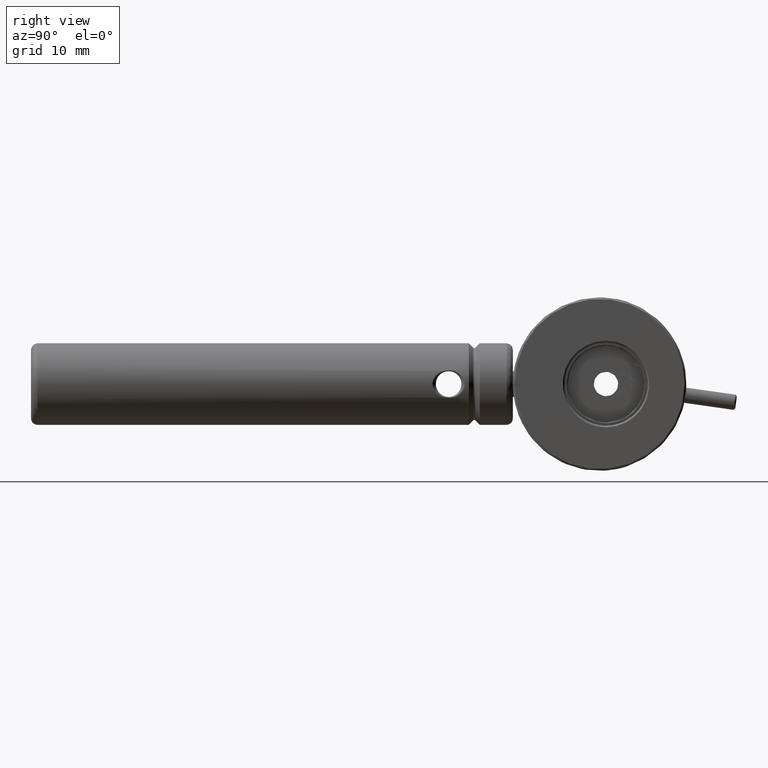
[diagram: clean part render]
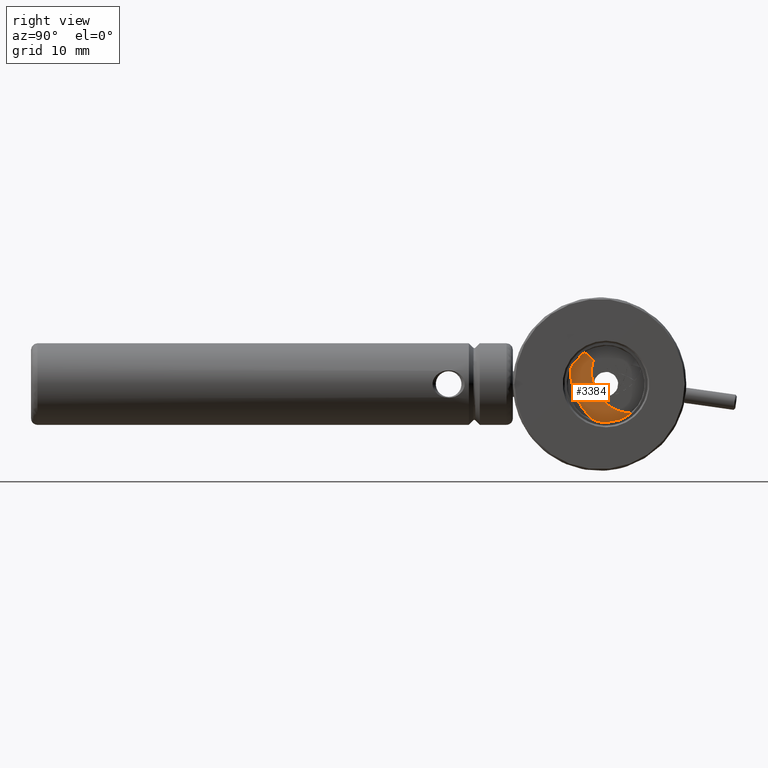
[diagram: same view with one face highlighted and labeled with its STEP entity id]
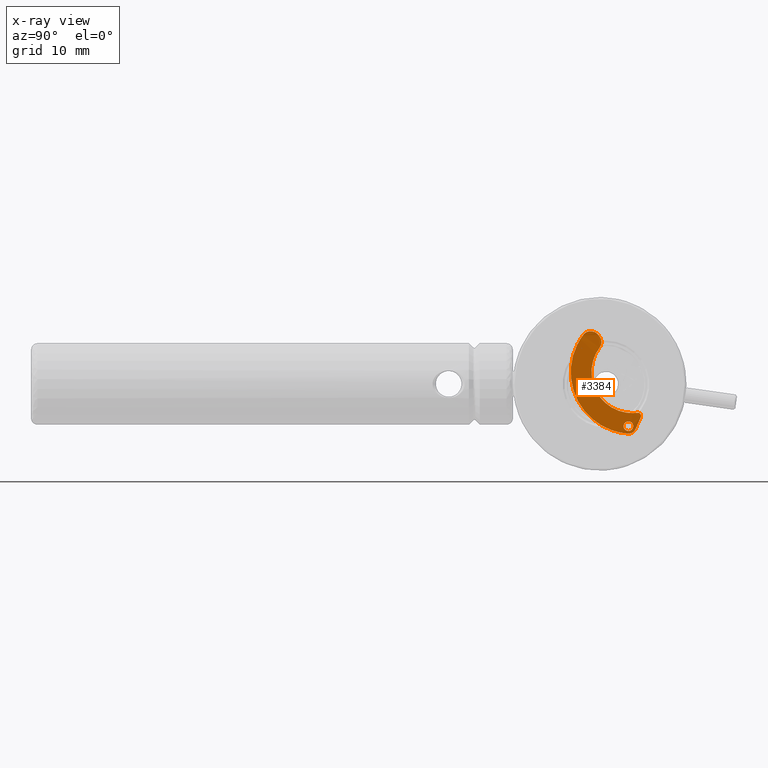
[diagram: x-ray of the same camera — body ghosted, the highlighted face saturated]
A machine part, right view. The second image highlights one B-rep face of the part: STEP entity #3384.
The next image is the same camera in x-ray: the body ghosted, the highlighted face saturated — about 0% of this face is hidden behind the body in this view.
In plain terms, the highlighted planar face has unit normal (1, 0, 0).
Its self-contained STEP definition (entity closure, byte-faithful):
#34 = CARTESIAN_POINT ( 'NONE',  ( 4.284389209459747327, 9.129644577415973572, -36.47709629962619715 ) ) ;
#56 = CARTESIAN_POINT ( 'NONE',  ( 4.284389209459749104, -0.5466496088072225756, -27.70730121021417958 ) ) ;
#67 = CARTESIAN_POINT ( 'NONE',  ( 4.284389209459748216, 2.269230515345574073, -21.95988392001439138 ) ) ;
#89 = CARTESIAN_POINT ( 'NONE',  ( 4.284389209459747327, 7.895870190242262332, -37.25816551434601109 ) ) ;
#104 = CARTESIAN_POINT ( 'NONE',  ( 4.284389209459747327, 6.681055616301959432, -37.65058599467197809 ) ) ;
#142 = CARTESIAN_POINT ( 'NONE',  ( 4.209389209459748038, 9.818608087542807894, -34.63553233431292000 ) ) ;
#150 = CARTESIAN_POINT ( 'NONE',  ( 4.284389209459747327, 8.593572894653801697, -37.45162155665323667 ) ) ;
#198 = CARTESIAN_POINT ( 'NONE',  ( 4.284389209459748216, 7.675355839000216562, -36.82513873861672238 ) ) ;
#217 = CARTESIAN_POINT ( 'NONE',  ( 4.284389209459747327, 8.792590758130295114, -37.37635474325567486 ) ) ;
#235 = CARTESIAN_POINT ( 'NONE',  ( 4.284389209459747327, -0.04289346514395403487, -31.51567432862530183 ) ) ;
#280 = CARTESIAN_POINT ( 'NONE',  ( 4.284389209459749104, 7.109269925686592551, -34.42393874764897532 ) ) ;
#336 = CARTESIAN_POINT ( 'NONE',  ( 4.284389209459748216, 4.261394358336889177, -32.52219250605705980 ) ) ;
#419 = B_SPLINE_CURVE_WITH_KNOTS ( 'NONE', 3,
 ( #10456, #1395, #1567, #6885, #6998, #4258, #6041, #1449, #7963, #8792, #11345, #2402, #578, #5157, #9791, #10509 ),
 .UNSPECIFIED., .F., .F.,
 ( 4, 1, 2, 2, 2, 1, 2, 2, 4 ),
 ( 0.000000000000000000, 0.1249999999999942546, 0.1874999999999931999, 0.2499999999999921729, 0.4999999999999912292, 0.6249999999999922284, 0.6874999999999927836, 0.7499999999999932276, 1.000000000000000000 ),
 .UNSPECIFIED. ) ;
#526 = CARTESIAN_POINT ( 'NONE',  ( 4.284389209459747327, 7.725194967300753390, -37.00604499802125247 ) ) ;
#578 = CARTESIAN_POINT ( 'NONE',  ( 4.284389209459748216, 9.320803591190518489, -37.49365478639007421 ) ) ;
#614 = ORIENTED_EDGE ( 'NONE', *, *, #10128, .T. ) ;
#771 = FACE_OUTER_BOUND ( 'NONE', #1101, .T. ) ;
#799 = CARTESIAN_POINT ( 'NONE',  ( 4.284389209459746439, 4.144050589942625429, -24.08664458096452776 ) ) ;
#824 = CARTESIAN_POINT ( 'NONE',  ( 4.284389209459747327, 9.044617219196918967, -28.30769201270893376 ) ) ;
#857 = CARTESIAN_POINT ( 'NONE',  ( 4.284389209459746439, 4.114428831848004009, -23.06432787447801402 ) ) ;
#919 = CARTESIAN_POINT ( 'NONE',  ( 4.284389209459746439, 7.813062179544697727, -37.17269221484468034 ) ) ;
#976 = B_SPLINE_CURVE_WITH_KNOTS ( 'NONE', 3,
 ( #6129, #10533, #7029, #5056 ),
 .UNSPECIFIED., .F., .F.,
 ( 4, 4 ),
 ( 0.000000000000000000, 1.000000000000000000 ),
 .UNSPECIFIED. ) ;
#981 = CARTESIAN_POINT ( 'NONE',  ( 4.284389209459746439, 8.477152548490060724, -37.46765488334390426 ) ) ;
#1001 = CARTESIAN_POINT ( 'NONE',  ( 4.284389209459746439, 0.7805301070696959442, -33.22521402805867297 ) ) ;
#1034 = CARTESIAN_POINT ( 'NONE',  ( 4.284389209459747327, 4.105460261231374197, -23.04225648653332215 ) ) ;
#1059 = CARTESIAN_POINT ( 'NONE',  ( 4.284389209459747327, 4.479526263845189149, -36.77301690639581722 ) ) ;
#1101 = EDGE_LOOP ( 'NONE', ( #1932, #10148, #614, #10682, #2634, #4455, #2488, #3511 ) ) ;
#1164 = CARTESIAN_POINT ( 'NONE',  ( 4.284389209459748216, 7.894951485639383648, -34.57821152315103319 ) ) ;
#1191 = CARTESIAN_POINT ( 'NONE',  ( 4.284389209459748216, 8.820745301351411882, -36.08285413206268544 ) ) ;
#1219 = CARTESIAN_POINT ( 'NONE',  ( 4.284389209459747327, 7.833733347725732266, -34.56667457941578903 ) ) ;
#1249 = CARTESIAN_POINT ( 'NONE',  ( 4.284389209459745551, 7.707015095403622063, -36.96205721398499833 ) ) ;
#1318 = CARTESIAN_POINT ( 'NONE',  ( 4.209389209459748038, 9.818608087542807894, -34.63553233431292000 ) ) ;
#1395 = CARTESIAN_POINT ( 'NONE',  ( 4.284389209459747327, 8.406211833803267197, -37.88663166856320430 ) ) ;
#1449 = CARTESIAN_POINT ( 'NONE',  ( 4.284389209459747327, 8.944054076698039424, -37.77860768321026796 ) ) ;
#1455 = EDGE_CURVE ( 'NONE', #4179, #8402, #3980, .T. ) ;
#1567 = CARTESIAN_POINT ( 'NONE',  ( 4.284389209459748216, 8.496093580908405940, -37.88646823572359068 ) ) ;
#1701 = ORIENTED_EDGE ( 'NONE', *, *, #4452, .T. ) ;
#1798 = CARTESIAN_POINT ( 'NONE',  ( 4.284389209459748216, 3.974491107121444600, -24.44226248167248627 ) ) ;
#1802 = CARTESIAN_POINT ( 'NONE',  ( 4.284389209459747327, 7.955208638848826119, -37.31020881624431240 ) ) ;
#1847 = CARTESIAN_POINT ( 'NONE',  ( 4.284389209459747327, 2.830245257939410841, -26.83763162453282902 ) ) ;
#1891 = CARTESIAN_POINT ( 'NONE',  ( 4.284389209459748216, -0.4434426589190031409, -29.77048906948382623 ) ) ;
#1910 = CARTESIAN_POINT ( 'NONE',  ( 4.284389209459748216, 3.601967573793711797, -24.94451700728298249 ) ) ;
#1932 = ORIENTED_EDGE ( 'NONE', *, *, #3465, .T. ) ;
#1947 = CARTESIAN_POINT ( 'NONE',  ( 4.284389209459747327, 1.573742583071081391, -34.33669330261774633 ) ) ;
#1970 = CARTESIAN_POINT ( 'NONE',  ( 4.284389209459748216, 9.993826970380311536, -34.63683890300990953 ) ) ;
#2003 = CARTESIAN_POINT ( 'NONE',  ( 4.284389209459747327, 2.199114430559903965, -35.09516112939671473 ) ) ;
#2048 = CARTESIAN_POINT ( 'NONE',  ( 4.209389209459748038, 9.818608087542807894, -34.63553233431292000 ) ) ;
#2063 = DIRECTION ( 'NONE',  ( 1.000000000000000000, 7.338923692361724524E-18, 1.195771523471305414E-17 ) ) ;
#2094 = CARTESIAN_POINT ( 'NONE',  ( 4.284389209459747327, 10.37320358880073989, -35.25061650055917539 ) ) ;
#2117 = CARTESIAN_POINT ( 'NONE',  ( 4.284389209459746439, 5.522874587060232265, -37.23964722325194288 ) ) ;
#2142 = CARTESIAN_POINT ( 'NONE',  ( 4.284389209459748216, 7.860620213286111380, -36.21742533542598608 ) ) ;
#2402 = CARTESIAN_POINT ( 'NONE',  ( 4.284389209459749104, 9.298075762403195554, -37.51801200846296780 ) ) ;
#2488 = ORIENTED_EDGE ( 'NONE', *, *, #4034, .T. ) ;
#2570 = CARTESIAN_POINT ( 'NONE',  ( 4.284389209459745551, 4.212961037046224710, -23.44977886954397661 ) ) ;
#2634 = ORIENTED_EDGE ( 'NONE', *, *, #11538, .T. ) ;
#2636 = CARTESIAN_POINT ( 'NONE',  ( 4.284389209459748216, 4.204458603704769537, -23.89428065667278744 ) ) ;
#2682 = CARTESIAN_POINT ( 'NONE',  ( 4.284389209459748216, 2.767223145578007859, -29.42273734854526168 ) ) ;
#2693 = CARTESIAN_POINT ( 'NONE',  ( 4.284389209459746439, 3.940210530964369351, -22.72841798731485596 ) ) ;
#2720 = CARTESIAN_POINT ( 'NONE',  ( 4.284389209459748216, -0.4822776892896086798, -29.49965193351094683 ) ) ;
#2746 = CARTESIAN_POINT ( 'NONE',  ( 4.284389209459747327, 10.36611715653027410, -34.98650101875943363 ) ) ;
#2800 = CARTESIAN_POINT ( 'NONE',  ( 4.284389209459747327, 3.123563641886640596, -25.94488484974772291 ) ) ;
#2807 = CARTESIAN_POINT ( 'NONE',  ( 4.284389209459747327, 10.38612605585042026, -35.16435717269200723 ) ) ;
#2818 = CARTESIAN_POINT ( 'NONE',  ( 4.284389209459747327, 7.761690972610700179, -37.09435026270317337 ) ) ;
#2832 = CARTESIAN_POINT ( 'NONE',  ( 4.284389209459747327, 9.111464705518830698, -36.43310851558992880 ) ) ;
#2845 = CARTESIAN_POINT ( 'NONE',  ( 4.284389209459748216, 0.2749558651827296862, -24.39952550312786528 ) ) ;
#2912 = CARTESIAN_POINT ( 'NONE',  ( 4.284389209459748216, 1.664559935120155432, -22.22692133145448068 ) ) ;
#2917 = CARTESIAN_POINT ( 'NONE',  ( 4.284389209459748216, 7.781607211667115997, -36.31716129186376918 ) ) ;
#2937 = CARTESIAN_POINT ( 'NONE',  ( 4.284389209459748216, 9.161303833819379960, -36.61401477499450152 ) ) ;
#3006 = CARTESIAN_POINT ( 'NONE',  ( 4.284389209459749104, 4.627352644675647220, -32.91083050108239405 ) ) ;
#3117 = CARTESIAN_POINT ( 'NONE',  ( 4.284389209459748216, 4.305774830354039295, -32.57241658524157657 ) ) ;
#3313 = B_SPLINE_CURVE_WITH_KNOTS ( 'NONE', 3,
 ( #3874, #1249, #8360, #198, #9360, #3821, #7459, #10186, #4651, #2917, #6559, #2142, #3993, #7571, #9412, #8294, #3756, #5670, #4884, #9300, #7399, #8527, #4780, #1191, #7514, #4830, #11255, #7685, #5052, #8696 ),
 .UNSPECIFIED., .F., .F.,
 ( 4, 1, 2, 2, 2, 1, 2, 2, 2, 1, 2, 2, 2, 1, 2, 2, 4 ),
 ( 0.000000000000000000, 0.06250000000001786071, 0.09375000000002224609, 0.1250000000000266454, 0.2500000000000189848, 0.3125000000000151545, 0.3437500000000167644, 0.3750000000000183187, 0.5000000000000184297, 0.5625000000000203171, 0.5937500000000202061, 0.6250000000000202061, 0.7500000000000158762, 0.8125000000000147660, 0.8437500000000118794, 0.8750000000000088818, 1.000000000000000000 ),
 .UNSPECIFIED. ) ;
#3384 = ADVANCED_FACE ( 'NONE', ( #771, #4401 ), #7135, .T. ) ;
#3465 = EDGE_CURVE ( 'NONE', #8112, #4240, #4639, .T. ) ;
#3511 = ORIENTED_EDGE ( 'NONE', *, *, #7448, .T. ) ;
#3578 = CARTESIAN_POINT ( 'NONE',  ( 4.284389209459747327, 2.750871316814002210, -29.32289873452907969 ) ) ;
#3596 = CARTESIAN_POINT ( 'NONE',  ( 4.284389209459747327, 8.226116728910943365, -37.45176091826943576 ) ) ;
#3668 = CARTESIAN_POINT ( 'NONE',  ( 4.209389209459748038, 8.345986795510389911, -37.88223719935354694 ) ) ;
#3695 = CARTESIAN_POINT ( 'NONE',  ( 4.284389209459746439, 3.085069746761240683, -26.04366968270779026 ) ) ;
#3737 = CARTESIAN_POINT ( 'NONE',  ( 4.284389209459747327, -0.5255643570241361751, -29.12020131652143107 ) ) ;
#3756 = CARTESIAN_POINT ( 'NONE',  ( 4.284389209459748216, 8.243086778165395145, -35.98753195695803697 ) ) ;
#3769 = CARTESIAN_POINT ( 'NONE',  ( 4.284389209459747327, 9.907956559180167488, -34.62460366076345508 ) ) ;
#3780 = CARTESIAN_POINT ( 'NONE',  ( 4.284389209459746439, 8.455342581761902565, -37.46908931579652346 ) ) ;
#3817 = CARTESIAN_POINT ( 'NONE',  ( 4.284389209459748216, 3.342000954406835866, -22.14520581535272825 ) ) ;
#3821 = CARTESIAN_POINT ( 'NONE',  ( 4.284389209459746439, 7.668817277418860101, -36.75658950215772336 ) ) ;
#3841 = CARTESIAN_POINT ( 'NONE',  ( 4.284389209459748216, 8.326356559883121733, -37.47110720286689656 ) ) ;
#3874 = CARTESIAN_POINT ( 'NONE',  ( 4.284389209459747327, 7.725194967300753390, -37.00604499802125247 ) ) ;
#3902 = CARTESIAN_POINT ( 'NONE',  ( 4.284389209459747327, 9.482279098169453135, -34.67667047201943831 ) ) ;
#3914 = CARTESIAN_POINT ( 'NONE',  ( 4.209389209459748038, 3.748912797359291726, -22.51932366129258156 ) ) ;
#3942 = CARTESIAN_POINT ( 'NONE',  ( 4.284389209459748216, 10.22716501720930182, -34.76156283252610990 ) ) ;
#3980 = B_SPLINE_CURVE_WITH_KNOTS ( 'NONE', 3,
 ( #5682, #2094, #2807, #2746, #6569, #3942, #7410, #1970, #3769, #142 ),
 .UNSPECIFIED., .F., .F.,
 ( 4, 2, 2, 2, 4 ),
 ( 0.000000000000000000, 0.2500000000000000000, 0.5000000000000000000, 0.7500000000000000000, 1.000000000000000000 ),
 .UNSPECIFIED. ) ;
#3993 = CARTESIAN_POINT ( 'NONE',  ( 4.284389209459748216, 7.879774047307580354, -36.19708517024501049 ) ) ;
#4034 = EDGE_CURVE ( 'NONE', #5221, #11254, #4885, .T. ) ;
#4179 = VERTEX_POINT ( 'NONE', #8827 ) ;
#4239 = B_SPLINE_CURVE_WITH_KNOTS ( 'NONE', 3,
 ( #6523, #34, #10985, #2937, #4670, #5450, #10210, #10150, #6579, #5393, #5574, #5515, #4736, #8256, #217, #8316, #150, #4491, #981, #3780, #3841, #3596, #6335, #7240, #1802, #10869, #89, #919, #2818, #4555 ),
 .UNSPECIFIED., .F., .F.,
 ( 4, 1, 2, 2, 2, 1, 2, 2, 2, 1, 2, 2, 2, 1, 2, 2, 4 ),
 ( 0.000000000000000000, 0.06249999999999444888, 0.09374999999999167333, 0.1249999999999888978, 0.2499999999999862332, 0.3124999999999887867, 0.3437499999999871214, 0.3749999999999854561, 0.4999999999999851230, 0.5624999999999839018, 0.5937499999999842348, 0.6249999999999845679, 0.7499999999999837907, 0.8124999999999850120, 0.8437499999999880096, 0.8749999999999910072, 1.000000000000000000 ),
 .UNSPECIFIED. ) ;
#4240 = VERTEX_POINT ( 'NONE', #10966 ) ;
#4258 = CARTESIAN_POINT ( 'NONE',  ( 4.284389209459747327, 8.672827919353569115, -37.86168592369518393 ) ) ;
#4375 = CARTESIAN_POINT ( 'NONE',  ( 4.284389209459747327, 3.152970831770081528, -30.74267206304206113 ) ) ;
#4401 = FACE_BOUND ( 'NONE', #6125, .T. ) ;
#4452 = EDGE_CURVE ( 'NONE', #7572, #4696, #3313, .T. ) ;
#4455 = ORIENTED_EDGE ( 'NONE', *, *, #9973, .T. ) ;
#4491 = CARTESIAN_POINT ( 'NONE',  ( 4.284389209459747327, 8.524017553423677285, -37.46254878718465164 ) ) ;
#4550 = CARTESIAN_POINT ( 'NONE',  ( 4.284389209459748216, 4.226680854708772195, -23.71826362369373697 ) ) ;
#4555 = CARTESIAN_POINT ( 'NONE',  ( 4.284389209459747327, 7.725194967300753390, -37.00604499802125247 ) ) ;
#4610 = CARTESIAN_POINT ( 'NONE',  ( 4.284389209459747327, 4.040444921478563600, -24.33592358499724995 ) ) ;
#4636 = CARTESIAN_POINT ( 'NONE',  ( 4.284389209459748216, 1.190015898778895576, -33.83464214253478985 ) ) ;
#4639 = B_SPLINE_CURVE_WITH_KNOTS ( 'NONE', 3,
 ( #9345, #10891, #7441, #5474, #2845, #9223, #4816, #10948, #7318, #11066, #56, #10052, #3737, #2720, #5539, #1891, #6358, #9104, #235, #8220, #1001, #4636, #10171, #8278, #1947, #7379, #2003, #6485, #4697, #1059, #9390, #2117, #8270, #5644, #9274, #104, #9337, #3668 ),
 .UNSPECIFIED., .F., .F.,
 ( 4, 1, 1, 1, 2, 2, 2, 1, 1, 1, 2, 2, 2, 1, 1, 1, 2, 2, 2, 1, 1, 1, 2, 2, 4 ),
 ( 0.000000000000000000, 0.06250000000000460743, 0.09375000000000691114, 0.1093750000000080630, 0.1171875000000083961, 0.1250000000000087430, 0.2500000000000119349, 0.3125000000000135447, 0.3437500000000140443, 0.3593750000000143219, 0.3671875000000147660, 0.3750000000000151545, 0.5000000000000162093, 0.5625000000000170974, 0.5937500000000180966, 0.6093750000000186517, 0.6171875000000184297, 0.6250000000000182077, 0.7500000000000131006, 0.8125000000000105471, 0.8437500000000091038, 0.8593750000000084377, 0.8671875000000081046, 0.8750000000000077716, 1.000000000000000000 ),
 .UNSPECIFIED. ) ;
#4651 = CARTESIAN_POINT ( 'NONE',  ( 4.284389209459749104, 7.745395913868687643, -36.38434821515650697 ) ) ;
#4670 = CARTESIAN_POINT ( 'NONE',  ( 4.284389209459748216, 9.166409214694802188, -36.66083405803618689 ) ) ;
#4696 = VERTEX_POINT ( 'NONE', #2832 ) ;
#4697 = CARTESIAN_POINT ( 'NONE',  ( 4.284389209459748216, 3.919108688051127665, -36.43677749502801078 ) ) ;
#4736 = CARTESIAN_POINT ( 'NONE',  ( 4.284389209459747327, 8.956885625512091664, -37.24206834336614236 ) ) ;
#4780 = CARTESIAN_POINT ( 'NONE',  ( 4.284389209459747327, 8.753558378058768241, -36.04664283426434679 ) ) ;
#4806 = CARTESIAN_POINT ( 'NONE',  ( 4.284389209459748216, 7.853360255901484344, -34.57043664298085162 ) ) ;
#4816 = CARTESIAN_POINT ( 'NONE',  ( 4.284389209459748216, 0.1717915593420392684, -24.64220640565695319 ) ) ;
#4830 = CARTESIAN_POINT ( 'NONE',  ( 4.284389209459747327, 8.920481257789296237, -36.16186713368179539 ) ) ;
#4855 = CARTESIAN_POINT ( 'NONE',  ( 4.284389209459748216, 5.085228424308542827, -33.32697001966762684 ) ) ;
#4884 = CARTESIAN_POINT ( 'NONE',  ( 4.284389209459748216, 8.359507124329331518, -35.97149863026731964 ) ) ;
#4885 = B_SPLINE_CURVE_WITH_KNOTS ( 'NONE', 3,
 ( #9142, #1798, #4610, #7236, #11693, #7348, #799, #2636, #4550, #2570, #10981, #9017, #6214, #857, #1034, #10089, #2693, #8013 ),
 .UNSPECIFIED., .F., .F.,
 ( 4, 1, 1, 2, 2, 2, 1, 1, 2, 2, 4 ),
 ( 0.000000000000000000, 0.1249999999999877875, 0.1874999999999816813, 0.2187499999999786282, 0.2499999999999755751, 0.4999999999999849010, 0.6249999999999920064, 0.6874999999999956701, 0.7187499999999953371, 0.7499999999999951150, 1.000000000000000000 ),
 .UNSPECIFIED. ) ;
#4962 = B_SPLINE_CURVE_WITH_KNOTS ( 'NONE', 3,
 ( #9894, #5377, #11740, #7280, #2682, #3578, #10851, #10909, #9064, #9951, #6379, #1847, #5497, #8239, #3695, #10969, #2800, #10076, #1910, #5558 ),
 .UNSPECIFIED., .F., .F.,
 ( 4, 1, 1, 1, 2, 2, 2, 1, 1, 1, 2, 2, 4 ),
 ( 0.000000000000000000, 0.1249999999999989453, 0.1874999999999976685, 0.2187499999999970579, 0.2343749999999967526, 0.2499999999999964473, 0.4999999999999963363, 0.6249999999999962252, 0.6874999999999970024, 0.7187499999999981126, 0.7343749999999980016, 0.7499999999999978906, 1.000000000000000000 ),
 .UNSPECIFIED. ) ;
#5052 = CARTESIAN_POINT ( 'NONE',  ( 4.284389209459746439, 9.074968700208883021, -36.34480325090800790 ) ) ;
#5056 = CARTESIAN_POINT ( 'NONE',  ( 4.209389209459748038, 10.33718609342715489, -35.33271275999235428 ) ) ;
#5157 = CARTESIAN_POINT ( 'NONE',  ( 4.284389209459749104, 9.419667770780588256, -37.37955450455871897 ) ) ;
#5221 = VERTEX_POINT ( 'NONE', #7821 ) ;
#5377 = CARTESIAN_POINT ( 'NONE',  ( 4.284389209459746439, 3.049703094851348162, -30.49280677602594025 ) ) ;
#5387 = VERTEX_POINT ( 'NONE', #8655 ) ;
#5393 = CARTESIAN_POINT ( 'NONE',  ( 4.284389209459747327, 9.055052461152536480, -37.12199222174744762 ) ) ;
#5427 = CARTESIAN_POINT ( 'NONE',  ( 4.284389209459747327, 3.521036982954111494, -22.27024836420520870 ) ) ;
#5450 = CARTESIAN_POINT ( 'NONE',  ( 4.284389209459747327, 9.167842395400731093, -36.68256401145351475 ) ) ;
#5474 = CARTESIAN_POINT ( 'NONE',  ( 4.284389209459747327, 0.4283571529017972668, -24.06483531693873701 ) ) ;
#5497 = CARTESIAN_POINT ( 'NONE',  ( 4.284389209459748216, 2.967759960836778177, -26.37165170586614238 ) ) ;
#5515 = CARTESIAN_POINT ( 'NONE',  ( 4.284389209459747327, 8.976039459533502907, -37.22172817818520940 ) ) ;
#5539 = CARTESIAN_POINT ( 'NONE',  ( 4.284389209459746439, -0.4595354462664535955, -29.66216826349605640 ) ) ;
#5558 = CARTESIAN_POINT ( 'NONE',  ( 4.209389209459748038, 3.924296959906206528, -24.50993669643365536 ) ) ;
#5574 = CARTESIAN_POINT ( 'NONE',  ( 4.284389209459747327, 9.008961895848532464, -37.18269795436659564 ) ) ;
#5644 = CARTESIAN_POINT ( 'NONE',  ( 4.284389209459747327, 5.779171296418546433, -37.33542253623676999 ) ) ;
#5670 = CARTESIAN_POINT ( 'NONE',  ( 4.284389209459748216, 8.312642119395603046, -35.97660472642659357 ) ) ;
#5682 = CARTESIAN_POINT ( 'NONE',  ( 4.209389209459748038, 10.33718609342715489, -35.33271275999235428 ) ) ;
#5704 = CARTESIAN_POINT ( 'NONE',  ( 4.284389209459747327, 7.957349214776877844, -34.58956133177604642 ) ) ;
#5756 = CARTESIAN_POINT ( 'NONE',  ( 4.284389209459749104, 8.979178834033369583, -34.69837618990776207 ) ) ;
#6041 = CARTESIAN_POINT ( 'NONE',  ( 4.284389209459748216, 8.827141035556817172, -37.82607091211299633 ) ) ;
#6125 = EDGE_LOOP ( 'NONE', ( #9773, #1701 ) ) ;
#6129 = CARTESIAN_POINT ( 'NONE',  ( 4.209389209459748038, 9.532210413846183172, -37.16752918858698962 ) ) ;
#6214 = CARTESIAN_POINT ( 'NONE',  ( 4.284389209459747327, 4.130272420943252420, -23.10607078808407877 ) ) ;
#6335 = CARTESIAN_POINT ( 'NONE',  ( 4.284389209459747327, 8.083101294760711042, -37.39251067934669948 ) ) ;
#6358 = CARTESIAN_POINT ( 'NONE',  ( 4.284389209459747327, -0.4345981148714801456, -29.82664282405360368 ) ) ;
#6379 = CARTESIAN_POINT ( 'NONE',  ( 4.284389209459749992, 2.752205073935781510, -27.24718721133286081 ) ) ;
#6485 = CARTESIAN_POINT ( 'NONE',  ( 4.284389209459748216, 2.839166640512262418, -35.68476322541062018 ) ) ;
#6523 = CARTESIAN_POINT ( 'NONE',  ( 4.284389209459747327, 9.111464705518830698, -36.43310851558992880 ) ) ;
#6555 = CARTESIAN_POINT ( 'NONE',  ( 4.284389209459746439, 2.058697036549073989, -22.01789301738249804 ) ) ;
#6559 = CARTESIAN_POINT ( 'NONE',  ( 4.284389209459746439, 7.827697776971100474, -36.25645555924461405 ) ) ;
#6569 = CARTESIAN_POINT ( 'NONE',  ( 4.284389209459747327, 10.33383466201251721, -34.90528157478763660 ) ) ;
#6579 = CARTESIAN_POINT ( 'NONE',  ( 4.284389209459748216, 9.091263758950933749, -37.05480529845468851 ) ) ;
#6630 = CARTESIAN_POINT ( 'NONE',  ( 4.209389209459748038, 1.364936510368786049, -22.54726631572671636 ) ) ;
#6759 = CARTESIAN_POINT ( 'NONE',  ( 4.284389209459746439, 4.231955873729553730, -32.48853081192788039 ) ) ;
#6885 = CARTESIAN_POINT ( 'NONE',  ( 4.284389209459748216, 8.585291612512271797, -37.87617209790284534 ) ) ;
#6998 = CARTESIAN_POINT ( 'NONE',  ( 4.284389209459747327, 8.644605030136791157, -37.86705629380429627 ) ) ;
#7029 = CARTESIAN_POINT ( 'NONE',  ( 4.284389209459747327, 10.06886086690016668, -35.94431823619056843 ) ) ;
#7054 = VERTEX_POINT ( 'NONE', #7640 ) ;
#7135 = PLANE ( 'NONE',  #11763 ) ;
#7200 = B_SPLINE_CURVE_WITH_KNOTS ( 'NONE', 3,
 ( #2048, #3902, #5756, #9386, #7660, #5704, #1164, #4806, #1219, #280, #11169, #7606, #4855, #3006, #11228, #3117, #336, #6759, #10387, #8783, #7953, #4375 ),
 .UNSPECIFIED., .F., .F.,
 ( 4, 1, 1, 1, 1, 2, 2, 2, 1, 1, 1, 1, 2, 2, 4 ),
 ( 0.000000000000000000, 0.1249999999999954481, 0.1874999999999935607, 0.2187499999999927558, 0.2343749999999923395, 0.2421874999999920619, 0.2499999999999917843, 0.4999999999999898970, 0.6249999999999887867, 0.6874999999999890088, 0.7187499999999891198, 0.7343749999999900080, 0.7421874999999905631, 0.7499999999999910072, 1.000000000000000000 ),
 .UNSPECIFIED. ) ;
#7236 = CARTESIAN_POINT ( 'NONE',  ( 4.284389209459748216, 4.101050576913503498, -24.20341328344255416 ) ) ;
#7240 = CARTESIAN_POINT ( 'NONE',  ( 4.284389209459748216, 8.015914371467978583, -37.35629938154830398 ) ) ;
#7280 = CARTESIAN_POINT ( 'NONE',  ( 4.284389209459747327, 2.810777930213456788, -29.65421225528316995 ) ) ;
#7318 = CARTESIAN_POINT ( 'NONE',  ( 4.284389209459748216, -0.1939638013383626347, -25.55464530655666167 ) ) ;
#7330 = CARTESIAN_POINT ( 'NONE',  ( 4.284389209459746439, 1.498995943298211841, -22.36854104522388909 ) ) ;
#7348 = CARTESIAN_POINT ( 'NONE',  ( 4.284389209459748216, 4.137726334549040708, -24.10534353608511893 ) ) ;
#7379 = CARTESIAN_POINT ( 'NONE',  ( 4.284389209459747327, 1.605800328800255139, -34.37621326145654876 ) ) ;
#7399 = CARTESIAN_POINT ( 'NONE',  ( 4.284389209459746439, 8.510303112935918790, -35.96804631074422787 ) ) ;
#7410 = CARTESIAN_POINT ( 'NONE',  ( 4.284389209459747327, 10.15861167190614545, -34.70763721909469979 ) ) ;
#7441 = CARTESIAN_POINT ( 'NONE',  ( 4.284389209459747327, 0.7668229973120784804, -23.41332462933087299 ) ) ;
#7448 = EDGE_CURVE ( 'NONE', #11254, #8112, #10072, .T. ) ;
#7459 = CARTESIAN_POINT ( 'NONE',  ( 4.284389209459749104, 7.666799390348510990, -36.62760348027884305 ) ) ;
#7514 = CARTESIAN_POINT ( 'NONE',  ( 4.284389209459746439, 8.881451033970602538, -36.12894469736671965 ) ) ;
#7571 = CARTESIAN_POINT ( 'NONE',  ( 4.284389209459748216, 7.965082504617893022, -36.11443686151277888 ) ) ;
#7572 = VERTEX_POINT ( 'NONE', #526 ) ;
#7606 = CARTESIAN_POINT ( 'NONE',  ( 4.284389209459749104, 5.520460438661118019, -33.63211632983094290 ) ) ;
#7640 = CARTESIAN_POINT ( 'NONE',  ( 4.209389209459748038, 9.532210413846183172, -37.16752918858698962 ) ) ;
#7660 = CARTESIAN_POINT ( 'NONE',  ( 4.284389209459747327, 8.103020107812303863, -34.61385663715601879 ) ) ;
#7685 = CARTESIAN_POINT ( 'NONE',  ( 4.284389209459746439, 9.023597493274884584, -36.26646129876650093 ) ) ;
#7821 = CARTESIAN_POINT ( 'NONE',  ( 4.209389209459748038, 3.924296959906206528, -24.50993669643365536 ) ) ;
#7953 = CARTESIAN_POINT ( 'NONE',  ( 4.284389209459747327, 3.411947530711356258, -31.36928875032717201 ) ) ;
#7963 = CARTESIAN_POINT ( 'NONE',  ( 4.284389209459748216, 9.106879216293924273, -37.68060414434705763 ) ) ;
#7988 = EDGE_CURVE ( 'NONE', #4240, #7054, #419, .T. ) ;
#8013 = CARTESIAN_POINT ( 'NONE',  ( 4.284389209459747327, 3.826227348010720952, -22.60383085097810607 ) ) ;
#8112 = VERTEX_POINT ( 'NONE', #6630 ) ;
#8173 = CARTESIAN_POINT ( 'NONE',  ( 4.284389209459747327, 2.714466094411952746, -21.93834024933523708 ) ) ;
#8220 = CARTESIAN_POINT ( 'NONE',  ( 4.284389209459747327, 0.4825130299542296219, -32.66997657272320765 ) ) ;
#8232 = CARTESIAN_POINT ( 'NONE',  ( 4.284389209459747327, 2.929870909643998989, -21.97536346414687358 ) ) ;
#8239 = CARTESIAN_POINT ( 'NONE',  ( 4.284389209459748216, 3.048134267675408626, -26.14162047968279978 ) ) ;
#8256 = CARTESIAN_POINT ( 'NONE',  ( 4.284389209459745551, 8.871577168201348229, -37.32471665209862266 ) ) ;
#8270 = CARTESIAN_POINT ( 'NONE',  ( 4.284389209459746439, 5.676397030774912089, -37.29760950758586091 ) ) ;
#8278 = CARTESIAN_POINT ( 'NONE',  ( 4.284389209459747327, 1.507887565000582519, -34.25419749063885888 ) ) ;
#8291 = CARTESIAN_POINT ( 'NONE',  ( 4.284389209459747327, 3.671598246707862501, -22.43481647160705705 ) ) ;
#8294 = CARTESIAN_POINT ( 'NONE',  ( 4.284389209459747327, 8.175757935446329228, -36.00826344636710985 ) ) ;
#8316 = CARTESIAN_POINT ( 'NONE',  ( 4.284389209459747327, 8.660901737373036369, -37.43089006724412116 ) ) ;
#8360 = CARTESIAN_POINT ( 'NONE',  ( 4.284389209459747327, 7.686282533068777845, -36.89465978842792282 ) ) ;
#8402 = VERTEX_POINT ( 'NONE', #1318 ) ;
#8527 = CARTESIAN_POINT ( 'NONE',  ( 4.284389209459747327, 8.610542943908864544, -35.98739259534197998 ) ) ;
#8655 = CARTESIAN_POINT ( 'NONE',  ( 4.284389209459747327, 3.152970831770081528, -30.74267206304206113 ) ) ;
#8696 = CARTESIAN_POINT ( 'NONE',  ( 4.284389209459747327, 9.111464705518830698, -36.43310851558992880 ) ) ;
#8783 = CARTESIAN_POINT ( 'NONE',  ( 4.284389209459747327, 3.761870631530786824, -31.93993161457634500 ) ) ;
#8792 = CARTESIAN_POINT ( 'NONE',  ( 4.284389209459749104, 9.183582033361220809, -37.62579860205487847 ) ) ;
#8827 = CARTESIAN_POINT ( 'NONE',  ( 4.209389209459748038, 10.33718609342715489, -35.33271275999235428 ) ) ;
#9017 = CARTESIAN_POINT ( 'NONE',  ( 4.284389209459746439, 4.152585273927035914, -23.16900707407376814 ) ) ;
#9064 = CARTESIAN_POINT ( 'NONE',  ( 4.284389209459749104, 2.653477329412805563, -28.63534672825132077 ) ) ;
#9104 = CARTESIAN_POINT ( 'NONE',  ( 4.284389209459747327, -0.2876300328063159384, -30.71288564110034969 ) ) ;
#9142 = CARTESIAN_POINT ( 'NONE',  ( 4.209389209459748038, 3.924296959906206528, -24.50993669643365536 ) ) ;
#9223 = CARTESIAN_POINT ( 'NONE',  ( 4.284389209459747327, 0.2126049492644272454, -24.54487876343431196 ) ) ;
#9274 = CARTESIAN_POINT ( 'NONE',  ( 4.284389209459747327, 5.832680073094885564, -37.35458075033379544 ) ) ;
#9300 = CARTESIAN_POINT ( 'NONE',  ( 4.284389209459746439, 8.381317091057816526, -35.97006419781467201 ) ) ;
#9337 = CARTESIAN_POINT ( 'NONE',  ( 4.284389209459748216, 7.502189709201116052, -37.82066745327977486 ) ) ;
#9345 = CARTESIAN_POINT ( 'NONE',  ( 4.209389209459748038, 1.364936510368786049, -22.54726631572671636 ) ) ;
#9360 = CARTESIAN_POINT ( 'NONE',  ( 4.284389209459746439, 7.670250458124789894, -36.77831945557501570 ) ) ;
#9386 = CARTESIAN_POINT ( 'NONE',  ( 4.284389209459747327, 8.394666660741508579, -34.65369692226909137 ) ) ;
#9390 = CARTESIAN_POINT ( 'NONE',  ( 4.284389209459748216, 5.169128234981370973, -37.09570270363684585 ) ) ;
#9412 = CARTESIAN_POINT ( 'NONE',  ( 4.284389209459747327, 8.044068914689729510, -36.06279877035543535 ) ) ;
#9631 = EDGE_CURVE ( 'NONE', #4696, #7572, #4239, .T. ) ;
#9773 = ORIENTED_EDGE ( 'NONE', *, *, #9631, .T. ) ;
#9791 = CARTESIAN_POINT ( 'NONE',  ( 4.284389209459747327, 9.483545766359807061, -37.27845265741309788 ) ) ;
#9894 = CARTESIAN_POINT ( 'NONE',  ( 4.284389209459747327, 3.152970831770081528, -30.74267206304206113 ) ) ;
#9951 = CARTESIAN_POINT ( 'NONE',  ( 4.284389209459747327, 2.649230787711140511, -28.07982402219007056 ) ) ;
#9973 = EDGE_CURVE ( 'NONE', #5387, #5221, #4962, .T. ) ;
#10052 = CARTESIAN_POINT ( 'NONE',  ( 4.284389209459749104, -0.5730234285485488188, -28.36031669444548697 ) ) ;
#10072 = B_SPLINE_CURVE_WITH_KNOTS ( 'NONE', 3,
 ( #8291, #5427, #3817, #8232, #8173, #67, #6555, #2912, #7330, #11021 ),
 .UNSPECIFIED., .F., .F.,
 ( 4, 2, 2, 2, 4 ),
 ( 0.000000000000000000, 0.2499999999999999445, 0.4999999999999998890, 0.7499999999999997780, 1.000000000000000000 ),
 .UNSPECIFIED. ) ;
#10076 = CARTESIAN_POINT ( 'NONE',  ( 4.284389209459748216, 3.339286324305200893, -25.41239202256046070 ) ) ;
#10089 = CARTESIAN_POINT ( 'NONE',  ( 4.284389209459747327, 4.030512318992018450, -22.86810999580633208 ) ) ;
#10128 = EDGE_CURVE ( 'NONE', #7054, #4179, #976, .T. ) ;
#10148 = ORIENTED_EDGE ( 'NONE', *, *, #7988, .T. ) ;
#10150 = CARTESIAN_POINT ( 'NONE',  ( 4.284389209459747327, 9.150513997873595429, -36.91178986430439579 ) ) ;
#10171 = CARTESIAN_POINT ( 'NONE',  ( 4.284389209459749104, 1.410208595068779935, -34.12976897058570813 ) ) ;
#10186 = CARTESIAN_POINT ( 'NONE',  ( 4.284389209459746439, 7.686145674945918493, -36.52736364930674284 ) ) ;
#10210 = CARTESIAN_POINT ( 'NONE',  ( 4.284389209459748216, 9.169860282471057999, -36.81155003333216769 ) ) ;
#10231 = DIRECTION ( 'NONE',  ( 6.606176606327327641E-18, -0.9981883663449865329, 0.06016631361091300673 ) ) ;
#10387 = CARTESIAN_POINT ( 'NONE',  ( 4.284389209459746439, 4.216517306187673952, -32.47068406332743251 ) ) ;
#10456 = CARTESIAN_POINT ( 'NONE',  ( 4.209389209459748038, 8.345986795510389911, -37.88223719935354694 ) ) ;
#10509 = CARTESIAN_POINT ( 'NONE',  ( 4.209389209459748038, 9.532210413846183172, -37.16752918858698962 ) ) ;
#10533 = CARTESIAN_POINT ( 'NONE',  ( 4.284389209459747327, 9.800535640373173152, -36.55592371238877547 ) ) ;
#10682 = ORIENTED_EDGE ( 'NONE', *, *, #1455, .T. ) ;
#10851 = CARTESIAN_POINT ( 'NONE',  ( 4.284389209459748216, 2.740484432639849643, -29.25619852906115526 ) ) ;
#10869 = CARTESIAN_POINT ( 'NONE',  ( 4.284389209459748216, 7.916178415030193705, -37.27728637992929350 ) ) ;
#10891 = CARTESIAN_POINT ( 'NONE',  ( 4.284389209459747327, 1.111216467901696925, -22.88552064241621053 ) ) ;
#10909 = CARTESIAN_POINT ( 'NONE',  ( 4.284389209459747327, 2.735706033565701745, -29.22390787322980543 ) ) ;
#10948 = CARTESIAN_POINT ( 'NONE',  ( 4.284389209459748216, 0.1524885505664180518, -24.68926768492901402 ) ) ;
#10966 = CARTESIAN_POINT ( 'NONE',  ( 4.209389209459748038, 8.345986795510389911, -37.88223719935354694 ) ) ;
#10969 = CARTESIAN_POINT ( 'NONE',  ( 4.284389209459747327, 3.110246587837030674, -25.97851004344588333 ) ) ;
#10981 = CARTESIAN_POINT ( 'NONE',  ( 4.284389209459748216, 4.194480882942245081, -23.31811181711389125 ) ) ;
#10985 = CARTESIAN_POINT ( 'NONE',  ( 4.284389209459747327, 9.150377139750817790, -36.54449372518330819 ) ) ;
#11021 = CARTESIAN_POINT ( 'NONE',  ( 4.209389209459748038, 1.364936510368786049, -22.54726631572671636 ) ) ;
#11066 = CARTESIAN_POINT ( 'NONE',  ( 4.284389209459746439, -0.4044979374510940806, -26.39902249752992702 ) ) ;
#11169 = CARTESIAN_POINT ( 'NONE',  ( 4.284389209459747327, 6.447947214541617456, -34.17368267580167895 ) ) ;
#11228 = CARTESIAN_POINT ( 'NONE',  ( 4.284389209459747327, 4.410888480803807354, -32.68772686927439963 ) ) ;
#11254 = VERTEX_POINT ( 'NONE', #3914 ) ;
#11255 = CARTESIAN_POINT ( 'NONE',  ( 4.284389209459747327, 8.940789482577324421, -36.18098799926517017 ) ) ;
#11345 = CARTESIAN_POINT ( 'NONE',  ( 4.284389209459747327, 9.253220221332533413, -37.56228740047185255 ) ) ;
#11538 = EDGE_CURVE ( 'NONE', #8402, #5387, #7200, .T. ) ;
#11693 = CARTESIAN_POINT ( 'NONE',  ( 4.284389209459746439, 4.123522901818111208, -24.14481281375476129 ) ) ;
#11740 = CARTESIAN_POINT ( 'NONE',  ( 4.284389209459748216, 2.919489569562097930, -30.11123463155954028 ) ) ;
#11763 = AXIS2_PLACEMENT_3D ( 'NONE', #824, #2063, #10231 ) ;